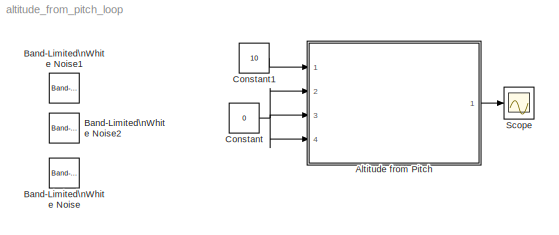
MODEL altitude_from_pitch_loop
KIND model
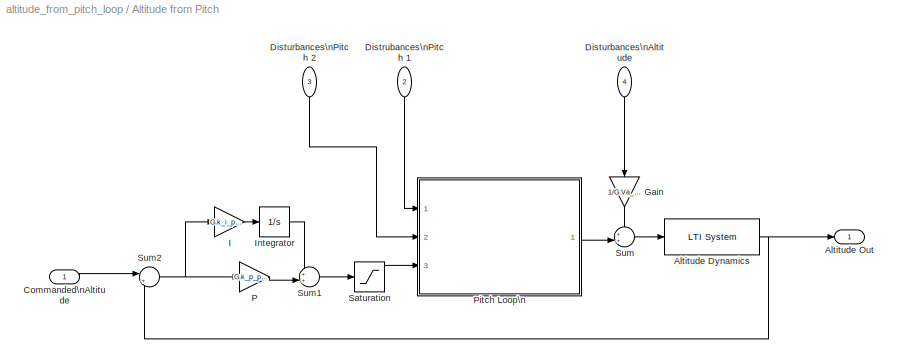
BLOCK [SubSystem] Altitude from Pitch
  Ports = [4, 1]
  RequestExecContextInheritance = off
  SID = 60
BLOCK [Reference] Altitude from Pitch/Altitude Dynamics  REF=cstblocks/LTI System
  IC = []
  Ports = [1, 1]
  SID = 31
  SourceBlock = cstblocks/LTI System
  SourceProductBaseCode = CT
  SourceProductName = Control System Toolbox
  SourceType = LTI Block
  sys = T_h_theta
BLOCK [Outport] Altitude from Pitch/Altitude Out
  IconDisplay = Port number
  SID = 70
BLOCK [Inport] Altitude from Pitch/Commanded\nAltitude
  IconDisplay = Port number
  SID = 66
BLOCK [Inport] Altitude from Pitch/Distrubances\nPitch 1
  IconDisplay = Port number
  Port = 2
  SID = 67
BLOCK [Inport] Altitude from Pitch/Disturbances\nAltitude
  IconDisplay = Port number
  Port = 4
  SID = 69
BLOCK [Inport] Altitude from Pitch/Disturbances\nPitch 2
  IconDisplay = Port number
  Port = 3
  SID = 68
BLOCK [Gain] Altitude from Pitch/Gain
  Gain = 1/G.Va_trim
  OutDataTypeStr = Inherit: Inherit via internal rule
  ParamDataTypeStr = Inherit: Inherit via internal rule
  SID = 32
  SaturateOnIntegerOverflow = off
BLOCK [Gain] Altitude from Pitch/I
  Gain = G.k_i_pitch_altitude
  OutDataTypeStr = Inherit: Inherit via internal rule
  ParamDataTypeStr = Inherit: Inherit via internal rule
  SID = 36
  SaturateOnIntegerOverflow = off
BLOCK [Integrator] Altitude from Pitch/Integrator
  Ports = [1, 1]
  SID = 37
BLOCK [Gain] Altitude from Pitch/P
  Gain = G.k_p_pitch_altitude
  OutDataTypeStr = Inherit: Inherit via internal rule
  ParamDataTypeStr = Inherit: Inherit via internal rule
  SID = 35
  SaturateOnIntegerOverflow = off
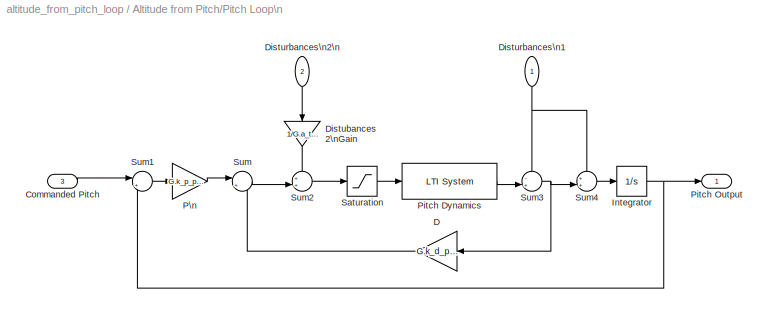
BLOCK [SubSystem] Altitude from Pitch/Pitch Loop\n
  Ports = [3, 1]
  RequestExecContextInheritance = off
  SID = 21
BLOCK [Inport] Altitude from Pitch/Pitch Loop\n/Commanded Pitch
  IconDisplay = Port number
  Port = 3
  SID = 23
BLOCK [Gain] Altitude from Pitch/Pitch Loop\n/D
  Gain = G.k_d_pitch
  OutDataTypeStr = Inherit: Inherit via internal rule
  ParamDataTypeStr = Inherit: Inherit via internal rule
  SID = 2
  SaturateOnIntegerOverflow = off
BLOCK [Gain] Altitude from Pitch/Pitch Loop\n/Distubances 2\nGain
  Gain = 1/G.a_theta3
  OutDataTypeStr = Inherit: Inherit via internal rule
  ParamDataTypeStr = Inherit: Inherit via internal rule
  SID = 14
  SaturateOnIntegerOverflow = off
BLOCK [Inport] Altitude from Pitch/Pitch Loop\n/Disturbances\n1
  IconDisplay = Port number
  SID = 26
BLOCK [Inport] Altitude from Pitch/Pitch Loop\n/Disturbances\n2\n
  IconDisplay = Port number
  Port = 2
  SID = 22
BLOCK [Integrator] Altitude from Pitch/Pitch Loop\n/Integrator
  Ports = [1, 1]
  SID = 4
BLOCK [Gain] Altitude from Pitch/Pitch Loop\n/P\n
  Gain = G.k_p_pitch
  OutDataTypeStr = Inherit: Inherit via internal rule
  ParamDataTypeStr = Inherit: Inherit via internal rule
  SID = 6
  SaturateOnIntegerOverflow = off
BLOCK [Reference] Altitude from Pitch/Pitch Loop\n/Pitch Dynamics  REF=cstblocks/LTI System
  IC = []
  Ports = [1, 1]
  SID = 1
  SourceBlock = cstblocks/LTI System
  SourceProductBaseCode = CT
  SourceProductName = Control System Toolbox
  SourceType = LTI Block
  sys = T_theta_dot_delta_e
BLOCK [Outport] Altitude from Pitch/Pitch Loop\n/Pitch Output
  IconDisplay = Port number
  SID = 24
BLOCK [Saturate] Altitude from Pitch/Pitch Loop\n/Saturation
  InputPortMap = u0
  LowerLimit = -G.delta_a_max
  Ports = [1, 1]
  SID = 20
  UpperLimit = G.delta_e_max
BLOCK [Sum] Altitude from Pitch/Pitch Loop\n/Sum
  IconShape = round
  InputSameDT = off
  Inputs = |+-
  OutDataTypeStr = Inherit: Inherit via internal rule
  Ports = [2, 1]
  SID = 3
  SaturateOnIntegerOverflow = off
BLOCK [Sum] Altitude from Pitch/Pitch Loop\n/Sum1
  IconShape = round
  InputSameDT = off
  Inputs = |+-
  OutDataTypeStr = Inherit: Inherit via internal rule
  Ports = [2, 1]
  SID = 5
  SaturateOnIntegerOverflow = off
BLOCK [Sum] Altitude from Pitch/Pitch Loop\n/Sum2
  IconShape = round
  InputSameDT = off
  Inputs = ++|
  OutDataTypeStr = Inherit: Inherit via internal rule
  Ports = [2, 1]
  SID = 13
  SaturateOnIntegerOverflow = off
BLOCK [Sum] Altitude from Pitch/Pitch Loop\n/Sum3
  IconShape = round
  InputSameDT = off
  Inputs = -+|
  OutDataTypeStr = Inherit: Inherit via internal rule
  Ports = [2, 1]
  SID = 25
  SaturateOnIntegerOverflow = off
BLOCK [Sum] Altitude from Pitch/Pitch Loop\n/Sum4
  IconShape = round
  InputSameDT = off
  Inputs = ++|
  OutDataTypeStr = Inherit: Inherit via internal rule
  Ports = [2, 1]
  SID = 27
  SaturateOnIntegerOverflow = off
BLOCK [Saturate] Altitude from Pitch/Saturation
  InputPortMap = u0
  LowerLimit = -pi/4
  Ports = [1, 1]
  SID = 74
  UpperLimit = pi/4
BLOCK [Sum] Altitude from Pitch/Sum
  IconShape = round
  InputSameDT = off
  Inputs = ++|
  OutDataTypeStr = Inherit: Inherit via internal rule
  Ports = [2, 1]
  SID = 30
  SaturateOnIntegerOverflow = off
BLOCK [Sum] Altitude from Pitch/Sum1
  IconShape = round
  InputSameDT = off
  Inputs = ++|
  OutDataTypeStr = Inherit: Inherit via internal rule
  Ports = [2, 1]
  SID = 34
  SaturateOnIntegerOverflow = off
BLOCK [Sum] Altitude from Pitch/Sum2
  IconShape = round
  InputSameDT = off
  Inputs = |+-
  OutDataTypeStr = Inherit: Inherit via internal rule
  Ports = [2, 1]
  SID = 39
  SaturateOnIntegerOverflow = off
BLOCK [Reference] Band-Limited\nWhite Noise  REF=simulink/Sources/Band-Limited\nWhite Noise
  Cov = [0.05]
  Ports = [0, 1]
  SID = 79
  SourceBlock = simulink/Sources/Band-Limited\nWhite Noise
  SourceProductBaseCode = SL
  SourceProductName = Simulink
  SourceType = Band-Limited White Noise.
  Ts = 0.1
  VectorParams1D = on
  seed = [23341]
BLOCK [Reference] Band-Limited\nWhite Noise1  REF=simulink/Sources/Band-Limited\nWhite Noise
  Cov = [0.05]
  Ports = [0, 1]
  SID = 80
  SourceBlock = simulink/Sources/Band-Limited\nWhite Noise
  SourceProductBaseCode = SL
  SourceProductName = Simulink
  SourceType = Band-Limited White Noise.
  Ts = 0.1
  VectorParams1D = on
  seed = [23551]
BLOCK [Reference] Band-Limited\nWhite Noise2  REF=simulink/Sources/Band-Limited\nWhite Noise
  Cov = [0.05]
  Ports = [0, 1]
  SID = 81
  SourceBlock = simulink/Sources/Band-Limited\nWhite Noise
  SourceProductBaseCode = SL
  SourceProductName = Simulink
  SourceType = Band-Limited White Noise.
  Ts = 0.1
  VectorParams1D = on
  seed = [87587]
BLOCK [Constant] Constant
  SID = 82
  Value = 0
BLOCK [Constant] Constant1
  SID = 75
  Value = 10
BLOCK [Scope] Scope
  Floating = off
  NumInputPorts = 1
  Ports = [1]
  SID = 9
  ScopeSpecificationString = Simulink.scopes.TimeScopeBlockCfg('CurrentConfiguration', extmgr.ConfigurationSet(extmgr.Configuration('Core','General UI',true),extmgr.Configuration('Core','Source UI',true),extmgr.Configuration('Sources','WiredSimulink',true),extmgr.Configuration('Visuals','Time Domain',true,'SerializedDisplays',{struct('MinYLimReal','-0.32058','MaxYLimReal','2.88525','YLabelReal','','MinYLimMag','0.00000','MaxY...<+1718ch>
NET Altitude from Pitch/Altitude Dynamics:1 -> Altitude from Pitch/Altitude Out:1, Altitude from Pitch/Sum2:2
LINE Altitude from Pitch/Commanded\nAltitude:1 -> Altitude from Pitch/Sum2:1
LINE Altitude from Pitch/Distrubances\nPitch 1:1 -> Altitude from Pitch/Pitch Loop\n:1
LINE Altitude from Pitch/Disturbances\nAltitude:1 -> Altitude from Pitch/Gain:1
LINE Altitude from Pitch/Disturbances\nPitch 2:1 -> Altitude from Pitch/Pitch Loop\n:2
LINE Altitude from Pitch/Gain:1 -> Altitude from Pitch/Sum:1
LINE Altitude from Pitch/I:1 -> Altitude from Pitch/Integrator:1
LINE Altitude from Pitch/Integrator:1 -> Altitude from Pitch/Sum1:1
LINE Altitude from Pitch/P:1 -> Altitude from Pitch/Sum1:2
LINE Altitude from Pitch/Pitch Loop\n/Commanded Pitch:1 -> Altitude from Pitch/Pitch Loop\n/Sum1:1
LINE Altitude from Pitch/Pitch Loop\n/D:1 -> Altitude from Pitch/Pitch Loop\n/Sum:2
LINE Altitude from Pitch/Pitch Loop\n/Distubances 2\nGain:1 -> Altitude from Pitch/Pitch Loop\n/Sum2:1
NET Altitude from Pitch/Pitch Loop\n/Disturbances\n1:1 -> Altitude from Pitch/Pitch Loop\n/Sum3:1, Altitude from Pitch/Pitch Loop\n/Sum4:1
LINE Altitude from Pitch/Pitch Loop\n/Disturbances\n2\n:1 -> Altitude from Pitch/Pitch Loop\n/Distubances 2\nGain:1
NET Altitude from Pitch/Pitch Loop\n/Integrator:1 -> Altitude from Pitch/Pitch Loop\n/Pitch Output:1, Altitude from Pitch/Pitch Loop\n/Sum1:2
LINE Altitude from Pitch/Pitch Loop\n/P\n:1 -> Altitude from Pitch/Pitch Loop\n/Sum:1
LINE Altitude from Pitch/Pitch Loop\n/Pitch Dynamics:1 -> Altitude from Pitch/Pitch Loop\n/Sum3:2
LINE Altitude from Pitch/Pitch Loop\n/Saturation:1 -> Altitude from Pitch/Pitch Loop\n/Pitch Dynamics:1
LINE Altitude from Pitch/Pitch Loop\n/Sum1:1 -> Altitude from Pitch/Pitch Loop\n/P\n:1
LINE Altitude from Pitch/Pitch Loop\n/Sum2:1 -> Altitude from Pitch/Pitch Loop\n/Saturation:1
NET Altitude from Pitch/Pitch Loop\n/Sum3:1 -> Altitude from Pitch/Pitch Loop\n/D:1, Altitude from Pitch/Pitch Loop\n/Sum4:2
LINE Altitude from Pitch/Pitch Loop\n/Sum4:1 -> Altitude from Pitch/Pitch Loop\n/Integrator:1
LINE Altitude from Pitch/Pitch Loop\n/Sum:1 -> Altitude from Pitch/Pitch Loop\n/Sum2:2
LINE Altitude from Pitch/Pitch Loop\n:1 -> Altitude from Pitch/Sum:2
LINE Altitude from Pitch/Saturation:1 -> Altitude from Pitch/Pitch Loop\n:3
LINE Altitude from Pitch/Sum1:1 -> Altitude from Pitch/Saturation:1
NET Altitude from Pitch/Sum2:1 -> Altitude from Pitch/I:1, Altitude from Pitch/P:1
LINE Altitude from Pitch/Sum:1 -> Altitude from Pitch/Altitude Dynamics:1
LINE Altitude from Pitch:1 -> Scope:1
LINE Constant1:1 -> Altitude from Pitch:1
NET Constant:1 -> Altitude from Pitch:2, Altitude from Pitch:3, Altitude from Pitch:4
note: NET lines group one-source signal fan-out (src -> all destinations, sorted); 1:1 wires keep LINE
